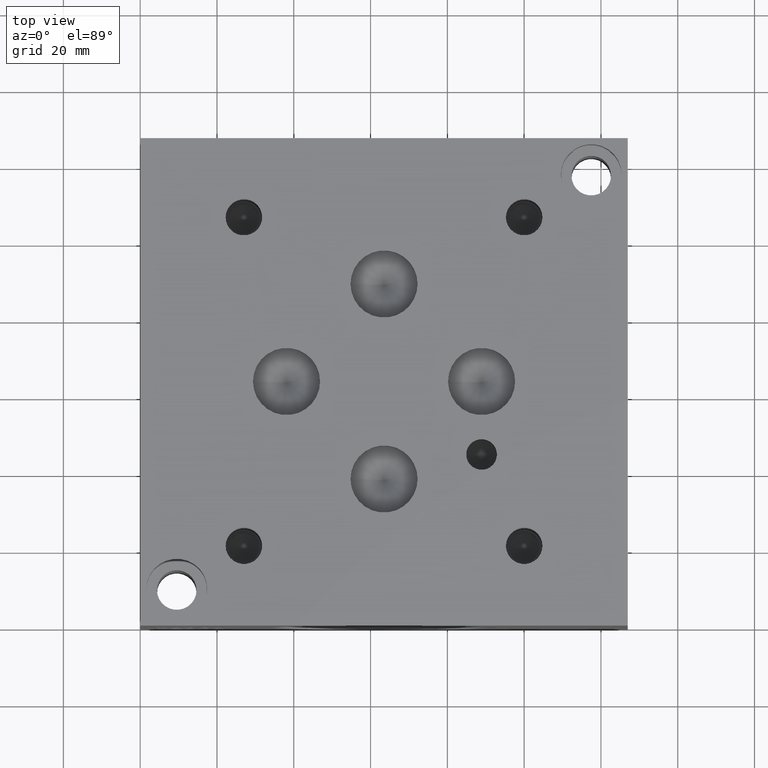
[diagram: clean part render]
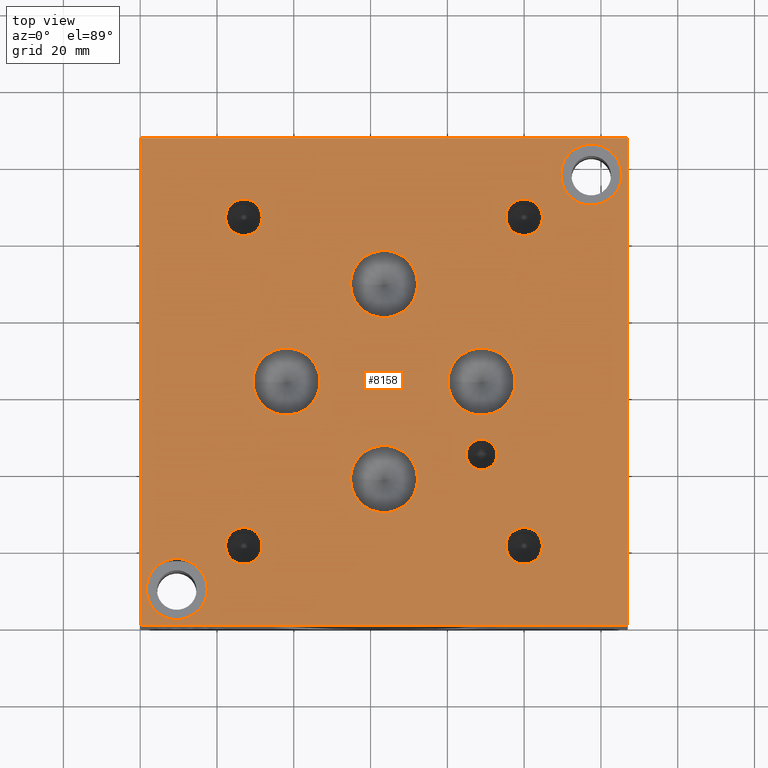
[diagram: same view with one face highlighted and labeled with its STEP entity id]
A machine part, top view. The second image highlights one B-rep face of the part: STEP entity #8158.
In plain terms, the highlighted planar face has unit normal (0, 0, 1).
Its self-contained STEP definition (entity closure, byte-faithful):
#160=CIRCLE('',#8503,7.9375);
#161=CIRCLE('',#8504,7.9375);
#166=CIRCLE('',#8512,7.9375);
#167=CIRCLE('',#8513,7.9375);
#171=CIRCLE('',#8520,8.7376);
#172=CIRCLE('',#8521,8.7376);
#175=CIRCLE('',#8526,8.7376);
#176=CIRCLE('',#8527,8.7376);
#179=CIRCLE('',#8532,8.7376);
#180=CIRCLE('',#8533,8.7376);
#183=CIRCLE('',#8538,8.7376);
#184=CIRCLE('',#8539,8.7376);
#187=CIRCLE('',#8544,4.0005);
#188=CIRCLE('',#8545,4.0005);
#194=CIRCLE('',#8554,4.7625);
#195=CIRCLE('',#8555,4.7625);
#201=CIRCLE('',#8565,4.7625);
#202=CIRCLE('',#8566,4.7625);
#208=CIRCLE('',#8576,4.7625);
#209=CIRCLE('',#8577,4.7625);
#215=CIRCLE('',#8587,4.7625);
#216=CIRCLE('',#8588,4.7625);
#261=FACE_BOUND('',#1551,.T.);
#262=FACE_BOUND('',#1552,.T.);
#263=FACE_BOUND('',#1553,.T.);
#264=FACE_BOUND('',#1554,.T.);
#265=FACE_BOUND('',#1555,.T.);
#266=FACE_BOUND('',#1556,.T.);
#267=FACE_BOUND('',#1557,.T.);
#268=FACE_BOUND('',#1558,.T.);
#269=FACE_BOUND('',#1559,.T.);
#270=FACE_BOUND('',#1560,.T.);
#271=FACE_BOUND('',#1561,.T.);
#1090=FACE_OUTER_BOUND('',#1550,.T.);
#1550=EDGE_LOOP('',(#7166,#7167,#7168,#7169));
#1551=EDGE_LOOP('',(#7170,#7171));
#1552=EDGE_LOOP('',(#7172,#7173));
#1553=EDGE_LOOP('',(#7174,#7175));
#1554=EDGE_LOOP('',(#7176,#7177));
#1555=EDGE_LOOP('',(#7178,#7179));
#1556=EDGE_LOOP('',(#7180,#7181));
#1557=EDGE_LOOP('',(#7182,#7183));
#1558=EDGE_LOOP('',(#7184,#7185));
#1559=EDGE_LOOP('',(#7186,#7187));
#1560=EDGE_LOOP('',(#7188,#7189));
#1561=EDGE_LOOP('',(#7190,#7191));
#1696=LINE('',#11512,#2424);
#2286=LINE('',#14220,#3014);
#2289=LINE('',#14226,#3017);
#2292=LINE('',#14230,#3020);
#2424=VECTOR('',#8785,10.);
#3014=VECTOR('',#10153,10.);
#3017=VECTOR('',#10158,10.);
#3020=VECTOR('',#10163,10.);
#3193=VERTEX_POINT('',#11509);
#3194=VERTEX_POINT('',#11511);
#3720=VERTEX_POINT('',#14037);
#3721=VERTEX_POINT('',#14038);
#3726=VERTEX_POINT('',#14054);
#3727=VERTEX_POINT('',#14055);
#3732=VERTEX_POINT('',#14071);
#3733=VERTEX_POINT('',#14072);
#3737=VERTEX_POINT('',#14084);
#3738=VERTEX_POINT('',#14085);
#3742=VERTEX_POINT('',#14097);
#3743=VERTEX_POINT('',#14098);
#3747=VERTEX_POINT('',#14110);
#3748=VERTEX_POINT('',#14111);
#3752=VERTEX_POINT('',#14123);
#3753=VERTEX_POINT('',#14124);
#3760=VERTEX_POINT('',#14143);
#3761=VERTEX_POINT('',#14144);
#3768=VERTEX_POINT('',#14165);
#3769=VERTEX_POINT('',#14166);
#3776=VERTEX_POINT('',#14187);
#3777=VERTEX_POINT('',#14188);
#3784=VERTEX_POINT('',#14209);
#3785=VERTEX_POINT('',#14210);
#3787=VERTEX_POINT('',#14219);
#3789=VERTEX_POINT('',#14225);
#4047=EDGE_CURVE('',#3194,#3193,#1696,.T.);
#4835=EDGE_CURVE('',#3720,#3721,#160,.T.);
#4836=EDGE_CURVE('',#3721,#3720,#161,.T.);
#4843=EDGE_CURVE('',#3726,#3727,#166,.T.);
#4844=EDGE_CURVE('',#3727,#3726,#167,.T.);
#4851=EDGE_CURVE('',#3732,#3733,#171,.T.);
#4852=EDGE_CURVE('',#3733,#3732,#172,.T.);
#4857=EDGE_CURVE('',#3737,#3738,#175,.T.);
#4858=EDGE_CURVE('',#3738,#3737,#176,.T.);
#4863=EDGE_CURVE('',#3742,#3743,#179,.T.);
#4864=EDGE_CURVE('',#3743,#3742,#180,.T.);
#4869=EDGE_CURVE('',#3747,#3748,#183,.T.);
#4870=EDGE_CURVE('',#3748,#3747,#184,.T.);
#4875=EDGE_CURVE('',#3752,#3753,#187,.T.);
#4876=EDGE_CURVE('',#3753,#3752,#188,.T.);
#4884=EDGE_CURVE('',#3760,#3761,#194,.T.);
#4885=EDGE_CURVE('',#3761,#3760,#195,.T.);
#4894=EDGE_CURVE('',#3768,#3769,#201,.T.);
#4895=EDGE_CURVE('',#3769,#3768,#202,.T.);
#4904=EDGE_CURVE('',#3776,#3777,#208,.T.);
#4905=EDGE_CURVE('',#3777,#3776,#209,.T.);
#4914=EDGE_CURVE('',#3784,#3785,#215,.T.);
#4915=EDGE_CURVE('',#3785,#3784,#216,.T.);
#4919=EDGE_CURVE('',#3787,#3194,#2286,.T.);
#4922=EDGE_CURVE('',#3789,#3787,#2289,.T.);
#4925=EDGE_CURVE('',#3193,#3789,#2292,.T.);
#7166=ORIENTED_EDGE('',*,*,#4047,.T.);
#7167=ORIENTED_EDGE('',*,*,#4925,.T.);
#7168=ORIENTED_EDGE('',*,*,#4922,.T.);
#7169=ORIENTED_EDGE('',*,*,#4919,.T.);
#7170=ORIENTED_EDGE('',*,*,#4835,.T.);
#7171=ORIENTED_EDGE('',*,*,#4836,.T.);
#7172=ORIENTED_EDGE('',*,*,#4843,.T.);
#7173=ORIENTED_EDGE('',*,*,#4844,.T.);
#7174=ORIENTED_EDGE('',*,*,#4851,.T.);
#7175=ORIENTED_EDGE('',*,*,#4852,.T.);
#7176=ORIENTED_EDGE('',*,*,#4857,.T.);
#7177=ORIENTED_EDGE('',*,*,#4858,.T.);
#7178=ORIENTED_EDGE('',*,*,#4863,.T.);
#7179=ORIENTED_EDGE('',*,*,#4864,.T.);
#7180=ORIENTED_EDGE('',*,*,#4869,.T.);
#7181=ORIENTED_EDGE('',*,*,#4870,.T.);
#7182=ORIENTED_EDGE('',*,*,#4875,.T.);
#7183=ORIENTED_EDGE('',*,*,#4876,.T.);
#7184=ORIENTED_EDGE('',*,*,#4884,.T.);
#7185=ORIENTED_EDGE('',*,*,#4885,.T.);
#7186=ORIENTED_EDGE('',*,*,#4894,.T.);
#7187=ORIENTED_EDGE('',*,*,#4895,.T.);
#7188=ORIENTED_EDGE('',*,*,#4904,.T.);
#7189=ORIENTED_EDGE('',*,*,#4905,.T.);
#7190=ORIENTED_EDGE('',*,*,#4914,.T.);
#7191=ORIENTED_EDGE('',*,*,#4915,.T.);
#7415=PLANE('',#8594);
#8158=ADVANCED_FACE('',(#1090,#261,#262,#263,#264,#265,#266,#267,#268,#269,
#270,#271),#7415,.T.);
#8503=AXIS2_PLACEMENT_3D('',#14039,#9950,#9951);
#8504=AXIS2_PLACEMENT_3D('',#14040,#9952,#9953);
#8512=AXIS2_PLACEMENT_3D('',#14056,#9970,#9971);
#8513=AXIS2_PLACEMENT_3D('',#14057,#9972,#9973);
#8520=AXIS2_PLACEMENT_3D('',#14073,#9989,#9990);
#8521=AXIS2_PLACEMENT_3D('',#14074,#9991,#9992);
#8526=AXIS2_PLACEMENT_3D('',#14086,#10003,#10004);
#8527=AXIS2_PLACEMENT_3D('',#14087,#10005,#10006);
#8532=AXIS2_PLACEMENT_3D('',#14099,#10017,#10018);
#8533=AXIS2_PLACEMENT_3D('',#14100,#10019,#10020);
#8538=AXIS2_PLACEMENT_3D('',#14112,#10031,#10032);
#8539=AXIS2_PLACEMENT_3D('',#14113,#10033,#10034);
#8544=AXIS2_PLACEMENT_3D('',#14125,#10045,#10046);
#8545=AXIS2_PLACEMENT_3D('',#14126,#10047,#10048);
#8554=AXIS2_PLACEMENT_3D('',#14145,#10067,#10068);
#8555=AXIS2_PLACEMENT_3D('',#14146,#10069,#10070);
#8565=AXIS2_PLACEMENT_3D('',#14167,#10092,#10093);
#8566=AXIS2_PLACEMENT_3D('',#14168,#10094,#10095);
#8576=AXIS2_PLACEMENT_3D('',#14189,#10117,#10118);
#8577=AXIS2_PLACEMENT_3D('',#14190,#10119,#10120);
#8587=AXIS2_PLACEMENT_3D('',#14211,#10142,#10143);
#8588=AXIS2_PLACEMENT_3D('',#14212,#10144,#10145);
#8594=AXIS2_PLACEMENT_3D('',#14232,#10166,#10167);
#8785=DIRECTION('',(1.,0.,0.));
#9950=DIRECTION('center_axis',(0.,0.,-1.));
#9951=DIRECTION('ref_axis',(1.,0.,0.));
#9952=DIRECTION('center_axis',(0.,0.,-1.));
#9953=DIRECTION('ref_axis',(1.,0.,0.));
#9970=DIRECTION('center_axis',(0.,0.,-1.));
#9971=DIRECTION('ref_axis',(1.,0.,0.));
#9972=DIRECTION('center_axis',(0.,0.,-1.));
#9973=DIRECTION('ref_axis',(1.,0.,0.));
#9989=DIRECTION('center_axis',(0.,0.,-1.));
#9990=DIRECTION('ref_axis',(1.,0.,0.));
#9991=DIRECTION('center_axis',(0.,0.,-1.));
#9992=DIRECTION('ref_axis',(1.,0.,0.));
#10003=DIRECTION('center_axis',(0.,0.,-1.));
#10004=DIRECTION('ref_axis',(1.,0.,0.));
#10005=DIRECTION('center_axis',(0.,0.,-1.));
#10006=DIRECTION('ref_axis',(1.,0.,0.));
#10017=DIRECTION('center_axis',(0.,0.,-1.));
#10018=DIRECTION('ref_axis',(1.,0.,0.));
#10019=DIRECTION('center_axis',(0.,0.,-1.));
#10020=DIRECTION('ref_axis',(1.,0.,0.));
#10031=DIRECTION('center_axis',(0.,0.,-1.));
#10032=DIRECTION('ref_axis',(1.,0.,0.));
#10033=DIRECTION('center_axis',(0.,0.,-1.));
#10034=DIRECTION('ref_axis',(1.,0.,0.));
#10045=DIRECTION('center_axis',(0.,0.,-1.));
#10046=DIRECTION('ref_axis',(1.,0.,0.));
#10047=DIRECTION('center_axis',(0.,0.,-1.));
#10048=DIRECTION('ref_axis',(1.,0.,0.));
#10067=DIRECTION('center_axis',(0.,0.,-1.));
#10068=DIRECTION('ref_axis',(1.,0.,0.));
#10069=DIRECTION('center_axis',(0.,0.,-1.));
#10070=DIRECTION('ref_axis',(1.,0.,0.));
#10092=DIRECTION('center_axis',(0.,0.,-1.));
#10093=DIRECTION('ref_axis',(1.,0.,0.));
#10094=DIRECTION('center_axis',(0.,0.,-1.));
#10095=DIRECTION('ref_axis',(1.,0.,0.));
#10117=DIRECTION('center_axis',(0.,0.,-1.));
#10118=DIRECTION('ref_axis',(1.,0.,0.));
#10119=DIRECTION('center_axis',(0.,0.,-1.));
#10120=DIRECTION('ref_axis',(1.,0.,0.));
#10142=DIRECTION('center_axis',(0.,0.,-1.));
#10143=DIRECTION('ref_axis',(1.,0.,0.));
#10144=DIRECTION('center_axis',(0.,0.,-1.));
#10145=DIRECTION('ref_axis',(1.,0.,0.));
#10153=DIRECTION('',(0.,-1.,0.));
#10158=DIRECTION('',(-1.,0.,0.));
#10163=DIRECTION('',(0.,1.,0.));
#10166=DIRECTION('center_axis',(0.,0.,1.));
#10167=DIRECTION('ref_axis',(1.,0.,0.));
#11509=CARTESIAN_POINT('',(127.,0.,63.5));
#11511=CARTESIAN_POINT('',(0.,0.,63.5));
#11512=CARTESIAN_POINT('',(0.,0.,63.5));
#14037=CARTESIAN_POINT('',(125.4125,117.475,63.5));
#14038=CARTESIAN_POINT('',(109.5375,117.475,63.5));
#14039=CARTESIAN_POINT('Origin',(117.475,117.475,63.5));
#14040=CARTESIAN_POINT('Origin',(117.475,117.475,63.5));
#14054=CARTESIAN_POINT('',(17.4625,9.525,63.5));
#14055=CARTESIAN_POINT('',(1.5875,9.525,63.5));
#14056=CARTESIAN_POINT('Origin',(9.525,9.525,63.5));
#14057=CARTESIAN_POINT('Origin',(9.525,9.525,63.5));
#14071=CARTESIAN_POINT('',(97.6376,63.5762,63.5));
#14072=CARTESIAN_POINT('',(80.1624,63.5762,63.5));
#14073=CARTESIAN_POINT('Origin',(88.9,63.5762,63.5));
#14074=CARTESIAN_POINT('Origin',(88.9,63.5762,63.5));
#14084=CARTESIAN_POINT('',(72.2376,38.1762,63.5));
#14085=CARTESIAN_POINT('',(54.7624,38.1762,63.5));
#14086=CARTESIAN_POINT('Origin',(63.5,38.1762,63.5));
#14087=CARTESIAN_POINT('Origin',(63.5,38.1762,63.5));
#14097=CARTESIAN_POINT('',(72.2376,88.9762,63.5));
#14098=CARTESIAN_POINT('',(54.7624,88.9762,63.5));
#14099=CARTESIAN_POINT('Origin',(63.5,88.9762,63.5));
#14100=CARTESIAN_POINT('Origin',(63.5,88.9762,63.5));
#14110=CARTESIAN_POINT('',(46.8376,63.5762,63.5));
#14111=CARTESIAN_POINT('',(29.3624,63.5762,63.5));
#14112=CARTESIAN_POINT('Origin',(38.1,63.5762,63.5));
#14113=CARTESIAN_POINT('Origin',(38.1,63.5762,63.5));
#14123=CARTESIAN_POINT('',(92.9005,44.577,63.5));
#14124=CARTESIAN_POINT('',(84.8995,44.577,63.5));
#14125=CARTESIAN_POINT('Origin',(88.9,44.577,63.5));
#14126=CARTESIAN_POINT('Origin',(88.9,44.577,63.5));
#14143=CARTESIAN_POINT('',(31.7627,106.3752,63.5));
#14144=CARTESIAN_POINT('',(22.2377,106.3752,63.5));
#14145=CARTESIAN_POINT('Origin',(27.0002,106.3752,63.5));
#14146=CARTESIAN_POINT('Origin',(27.0002,106.3752,63.5));
#14165=CARTESIAN_POINT('',(104.7623,20.7772,63.5));
#14166=CARTESIAN_POINT('',(95.2373,20.7772,63.5));
#14167=CARTESIAN_POINT('Origin',(99.9998,20.7772,63.5));
#14168=CARTESIAN_POINT('Origin',(99.9998,20.7772,63.5));
#14187=CARTESIAN_POINT('',(31.7627,20.7772,63.5));
#14188=CARTESIAN_POINT('',(22.2377,20.7772,63.5));
#14189=CARTESIAN_POINT('Origin',(27.0002,20.7772,63.5));
#14190=CARTESIAN_POINT('Origin',(27.0002,20.7772,63.5));
#14209=CARTESIAN_POINT('',(104.7623037,106.3752,63.5));
#14210=CARTESIAN_POINT('',(95.2373037,106.3752,63.5));
#14211=CARTESIAN_POINT('Origin',(99.9998037,106.3752,63.5));
#14212=CARTESIAN_POINT('Origin',(99.9998037,106.3752,63.5));
#14219=CARTESIAN_POINT('',(0.,127.,63.5));
#14220=CARTESIAN_POINT('',(0.,127.,63.5));
#14225=CARTESIAN_POINT('',(127.,127.,63.5));
#14226=CARTESIAN_POINT('',(127.,127.,63.5));
#14230=CARTESIAN_POINT('',(127.,0.,63.5));
#14232=CARTESIAN_POINT('Origin',(63.5,63.5,63.5));